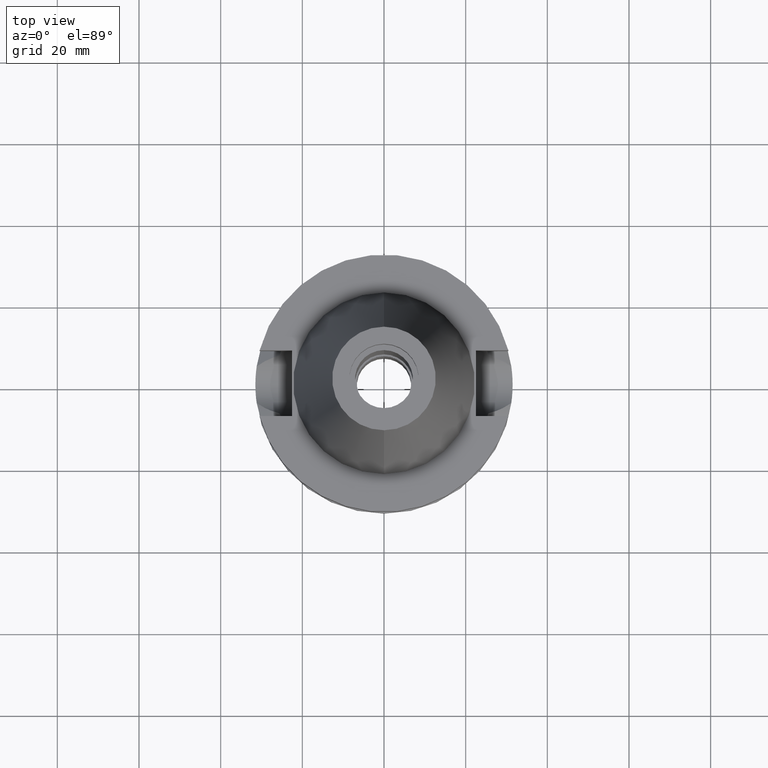
[diagram: clean part render]
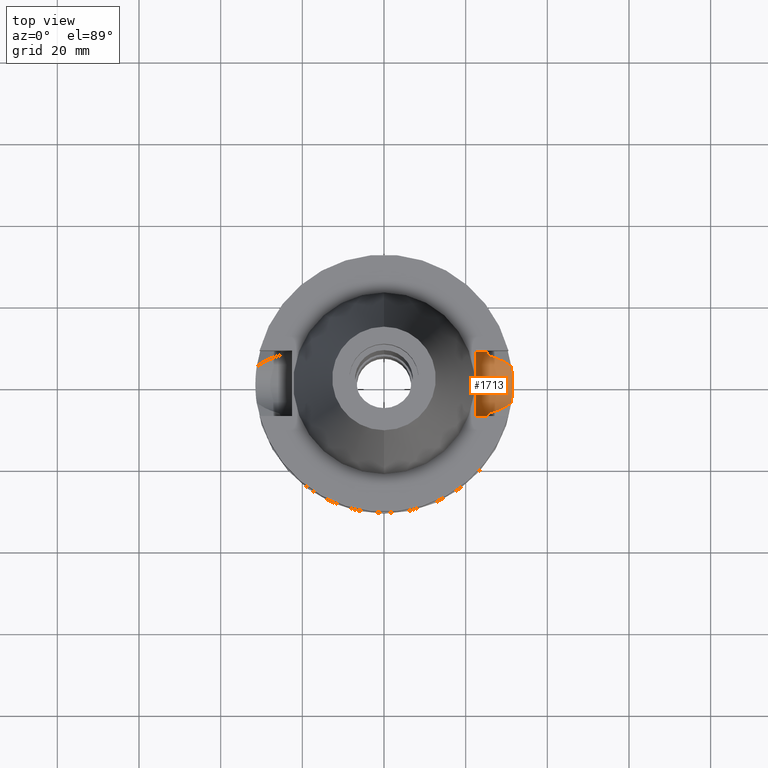
[diagram: same view with one face highlighted and labeled with its STEP entity id]
A machine part, top view. The second image highlights one B-rep face of the part: STEP entity #1713.
In plain terms, the highlighted cylindrical surface (edge-blend (fillet) strip) has radius 8.05 mm, axis along (1, 0, 0).
Its self-contained STEP definition (entity closure, byte-faithful):
#5 = CARTESIAN_POINT ( 'NONE',  ( 28.07142825273655262, 6.232117064706121035, -20.04851367446741506 ) ) ;
#24 = CARTESIAN_POINT ( 'NONE',  ( 25.53175183775000079, 7.097862220092999941, -18.74774300138999905 ) ) ;
#26 = EDGE_CURVE ( 'NONE', #1470, #2777, #822, .T. ) ;
#35 = CARTESIAN_POINT ( 'NONE',  ( 22.50000000000000000, 8.050000000000000711, -14.94999999999999929 ) ) ;
#50 = CARTESIAN_POINT ( 'NONE',  ( 25.53175183775000079, 7.097862220092999941, -18.74774300138999905 ) ) ;
#55 = CARTESIAN_POINT ( 'NONE',  ( 27.55504325123536802, 6.436563237531530035, -19.78459187968306665 ) ) ;
#76 = CARTESIAN_POINT ( 'NONE',  ( 25.29452398121201284, -7.902090651792915033, -16.48828405102948125 ) ) ;
#83 = AXIS2_PLACEMENT_3D ( 'NONE', #2367, #444, #3068 ) ;
#94 = CARTESIAN_POINT ( 'NONE',  ( 25.48480653792050532, 7.266729367421947750, -18.43213561436633086 ) ) ;
#96 = DIRECTION ( 'NONE',  ( 1.000000000000000000, -1.551559937893000172E-14, 0.0000000000000000000 ) ) ;
#115 = CARTESIAN_POINT ( 'NONE',  ( 25.31950905643225269, -7.821515286679913359, -16.85442525727320273 ) ) ;
#129 = DIRECTION ( 'NONE',  ( -1.000000000000000000, 0.0000000000000000000, 0.0000000000000000000 ) ) ;
#137 = CARTESIAN_POINT ( 'NONE',  ( 31.27811814699316173, -3.746647703606146518, -22.08610342036546115 ) ) ;
#141 = CARTESIAN_POINT ( 'NONE',  ( 25.24772266958000344, 8.050000000000000711, -14.94999999999999929 ) ) ;
#142 = B_SPLINE_CURVE_WITH_KNOTS ( 'NONE', 3,
 ( #383, #94, #2838, #2043, #592, #156, #664, #2769, #1561, #1137, #3074, #832, #1834, #141 ),
 .UNSPECIFIED., .F., .F.,
 ( 4, 2, 2, 1, 1, 2, 2, 4 ),
 ( 0.0000000000000000000, 0.2499999999999959477, 0.3749999999999952260, 0.4374999999999948930, 0.4687499999999947264, 0.4843749999999947820, 0.4999999999999947820, 1.000000000000000000 ),
 .UNSPECIFIED. ) ;
#156 = CARTESIAN_POINT ( 'NONE',  ( 25.35408314255057860, 7.708964442630808378, -17.26963666353005777 ) ) ;
#166 = CARTESIAN_POINT ( 'NONE',  ( 31.49999999999999289, -0.7652173854002088937, -23.00000000000000355 ) ) ;
#230 = CARTESIAN_POINT ( 'NONE',  ( 31.44586993974119693, 1.845388077327982934, -22.78626573708965353 ) ) ;
#243 = CARTESIAN_POINT ( 'NONE',  ( 27.52001206778910358, 6.449960729125881365, -19.76669255919230039 ) ) ;
#253 = CARTESIAN_POINT ( 'NONE',  ( 27.36157399842180382, -6.509459009752189829, -19.68606828696868760 ) ) ;
#291 = CARTESIAN_POINT ( 'NONE',  ( 30.47179919103066226, 5.022066387092488426, -21.27446330965968713 ) ) ;
#306 = CARTESIAN_POINT ( 'NONE',  ( 27.50576571943880566, 6.455390330637976071, -19.75941330061684553 ) ) ;
#347 = EDGE_CURVE ( 'NONE', #2267, #2570, #1900, .T. ) ;
#360 = CARTESIAN_POINT ( 'NONE',  ( 25.31648647172267630, -7.831300037042746354, -16.81378020971410336 ) ) ;
#375 = CARTESIAN_POINT ( 'NONE',  ( 25.24772266958000344, -8.050000000000000711, -14.94999999999999929 ) ) ;
#383 = CARTESIAN_POINT ( 'NONE',  ( 25.53175183775000079, 7.097862220092999941, -18.74774300138999905 ) ) ;
#395 = ORIENTED_EDGE ( 'NONE', *, *, #1835, .F. ) ;
#411 = LINE ( 'NONE', #1862, #651 ) ;
#414 = CARTESIAN_POINT ( 'NONE',  ( 31.49278265863215864, 0.7712237443674491155, -22.97267427306382714 ) ) ;
#444 = DIRECTION ( 'NONE',  ( 1.000000000000000000, 0.0000000000000000000, 0.0000000000000000000 ) ) ;
#468 = CARTESIAN_POINT ( 'NONE',  ( 26.79437906115841983, -6.719518736959172678, -19.39569514649581450 ) ) ;
#473 = CARTESIAN_POINT ( 'NONE',  ( 31.41518919074296079, 2.308430633290612377, -22.66192640672012004 ) ) ;
#474 = CARTESIAN_POINT ( 'NONE',  ( 25.53175183775000079, -7.097862220092999941, -18.74774300138999905 ) ) ;
#516 = CARTESIAN_POINT ( 'NONE',  ( 29.92547015430718105, -5.317011991061079357, -20.99582295828512457 ) ) ;
#535 = CARTESIAN_POINT ( 'NONE',  ( 30.50795924305214513, -4.966138605046432453, -21.29275614339417544 ) ) ;
#541 = CARTESIAN_POINT ( 'NONE',  ( 27.72881838708900659, 6.369038441966124786, -19.87339576659909923 ) ) ;
#556 = CARTESIAN_POINT ( 'NONE',  ( 31.17899877608999759, 4.485536235554000051, -21.63449434733000132 ) ) ;
#592 = CARTESIAN_POINT ( 'NONE',  ( 25.37569567372549528, 7.637836187999436532, -17.49781209657272640 ) ) ;
#636 = CARTESIAN_POINT ( 'NONE',  ( 25.25396284446427231, -8.030907492774099765, -15.59360398733923248 ) ) ;
#639 = CARTESIAN_POINT ( 'NONE',  ( 31.38993469299242989, -2.631299506615391248, -22.55875927457308450 ) ) ;
#651 = VECTOR ( 'NONE', #1165, 1000.000000000000000 ) ;
#660 = CARTESIAN_POINT ( 'NONE',  ( 31.47113664202177219, -1.554941824884414681, -22.89006639562905576 ) ) ;
#662 = CARTESIAN_POINT ( 'NONE',  ( 31.41417556869084748, 2.322180997274307490, -22.65779456375893730 ) ) ;
#664 = CARTESIAN_POINT ( 'NONE',  ( 25.34384339545049869, 7.742469616378786057, -17.15619314850168564 ) ) ;
#714 = CARTESIAN_POINT ( 'NONE',  ( 25.53175183775000079, -7.097862220092999941, -18.74774300138999905 ) ) ;
#727 = CARTESIAN_POINT ( 'NONE',  ( 27.46543449115334212, -6.470451347198184600, -19.73923068473311204 ) ) ;
#765 = CARTESIAN_POINT ( 'NONE',  ( 28.33578734562926016, 6.118942747044401997, -20.18369043501671811 ) ) ;
#774 = CARTESIAN_POINT ( 'NONE',  ( 30.86110005879823603, -4.726716024914688674, -21.47265403028684005 ) ) ;
#822 = B_SPLINE_CURVE_WITH_KNOTS ( 'NONE', 3,
 ( #1247, #774, #535, #516, #1454, #1979, #954, #1501, #2914, #3148, #1709, #2689, #727, #1740, #253, #468, #1232, #714 ),
 .UNSPECIFIED., .F., .F.,
 ( 4, 2, 2, 2, 2, 1, 1, 2, 2, 4 ),
 ( 0.0000000000000000000, 0.2500000000000039413, 0.3750000000000055511, 0.5000000000000072164, 0.6250000000000088818, 0.6875000000000096589, 0.7187500000000096589, 0.7343750000000096589, 0.7500000000000096589, 1.000000000000000000 ),
 .UNSPECIFIED. ) ;
#832 = CARTESIAN_POINT ( 'NONE',  ( 25.27267991477270925, 7.973333693868262628, -16.24500092433233078 ) ) ;
#877 = DIRECTION ( 'NONE',  ( 0.0000000000000000000, 0.0000000000000000000, -1.000000000000000000 ) ) ;
#904 = CARTESIAN_POINT ( 'NONE',  ( 31.17899877608999759, 4.485536235554000051, -21.63449434733000132 ) ) ;
#916 = CARTESIAN_POINT ( 'NONE',  ( 31.41024073627050228, -2.374795220354457115, -22.64174689569844290 ) ) ;
#954 = CARTESIAN_POINT ( 'NONE',  ( 29.08021064321458837, -5.770999253069938995, -20.56461318402386240 ) ) ;
#972 = CARTESIAN_POINT ( 'NONE',  ( 26.07032180093485962, 6.949818565984256402, -19.02443193453350645 ) ) ;
#1117 = CARTESIAN_POINT ( 'NONE',  ( 25.53175183775000079, -7.097862220092999941, -18.74774300138999905 ) ) ;
#1118 = CARTESIAN_POINT ( 'NONE',  ( 31.33672093448698703, -3.204248145709971851, -22.33748970090560704 ) ) ;
#1128 = EDGE_LOOP ( 'NONE', ( #2703, #3053, #395, #1635, #2280, #1234, #1791, #2960, #1891 ) ) ;
#1131 = CYLINDRICAL_SURFACE ( 'NONE', #83, 8.050000000000000711 ) ;
#1137 = CARTESIAN_POINT ( 'NONE',  ( 25.32546474064106690, 7.802209548897286240, -16.93201787082135823 ) ) ;
#1153 = CARTESIAN_POINT ( 'NONE',  ( 31.47113063452863813, 1.356702808491425216, -22.88730147016733341 ) ) ;
#1165 = DIRECTION ( 'NONE',  ( -1.000000000000000000, -1.551559937893000172E-14, 0.0000000000000000000 ) ) ;
#1191 = EDGE_CURVE ( 'NONE', #2222, #2915, #1734, .T. ) ;
#1232 = CARTESIAN_POINT ( 'NONE',  ( 26.19525032478314586, -6.915477855514470917, -19.08861364229106172 ) ) ;
#1234 = ORIENTED_EDGE ( 'NONE', *, *, #1520, .T. ) ;
#1245 = CARTESIAN_POINT ( 'NONE',  ( 25.24772266958000344, -8.050000000000000711, -14.94999999999999929 ) ) ;
#1247 = CARTESIAN_POINT ( 'NONE',  ( 31.17899877608999759, -4.485536235554000051, -21.63449434733000132 ) ) ;
#1334 = CARTESIAN_POINT ( 'NONE',  ( 25.24772266958000344, 8.050000000000000711, -14.94999999999999929 ) ) ;
#1355 = CARTESIAN_POINT ( 'NONE',  ( 25.32118155423751560, -7.816096717212906775, -16.87652453452377443 ) ) ;
#1373 = EDGE_CURVE ( 'NONE', #2915, #1920, #1659, .T. ) ;
#1406 = CARTESIAN_POINT ( 'NONE',  ( 22.50000000000000000, 8.050000000000000711, -14.94999999999999929 ) ) ;
#1417 = CARTESIAN_POINT ( 'NONE',  ( 31.42562755262359175, 2.162452754203622707, -22.70440397297250001 ) ) ;
#1454 = CARTESIAN_POINT ( 'NONE',  ( 29.72251472659647931, -5.432586942203953662, -20.89233083745377328 ) ) ;
#1460 = CARTESIAN_POINT ( 'NONE',  ( 26.57776260987021288, 6.789742760002750899, -19.28470942505863306 ) ) ;
#1470 = VERTEX_POINT ( 'NONE', #1743 ) ;
#1499 = LINE ( 'NONE', #35, #2685 ) ;
#1501 = CARTESIAN_POINT ( 'NONE',  ( 28.61865544333286593, -5.991295213228831074, -20.32891002976932526 ) ) ;
#1506 = CARTESIAN_POINT ( 'NONE',  ( 31.17899877608999759, 4.485536235554000051, -21.63449434733000132 ) ) ;
#1520 = EDGE_CURVE ( 'NONE', #1893, #2777, #2073, .T. ) ;
#1561 = CARTESIAN_POINT ( 'NONE',  ( 25.32840589093494188, 7.792665650289689161, -16.96921537928828982 ) ) ;
#1571 = CARTESIAN_POINT ( 'NONE',  ( 25.28048358772242210, -7.947040743794914874, -16.24400980664077920 ) ) ;
#1572 = CARTESIAN_POINT ( 'NONE',  ( 31.17899877608999759, -4.485536235554000051, -21.63449434733000132 ) ) ;
#1585 = CARTESIAN_POINT ( 'NONE',  ( 25.30212919435223995, -7.877667573970332349, -16.61042047323947202 ) ) ;
#1617 = CARTESIAN_POINT ( 'NONE',  ( 31.40782798546579002, -2.406597480406837963, -22.63190425694011765 ) ) ;
#1635 = ORIENTED_EDGE ( 'NONE', *, *, #347, .T. ) ;
#1659 = B_SPLINE_CURVE_WITH_KNOTS ( 'NONE', 3,
 ( #1506, #291, #2198, #765, #5, #541, #1970, #55, #1716, #243, #306, #2706, #1731, #1697, #1460, #972, #24 ),
 .UNSPECIFIED., .F., .F.,
 ( 4, 2, 2, 1, 2, 2, 1, 1, 2, 4 ),
 ( 0.0000000000000000000, 0.4999999999999766853, 0.6249999999999708011, 0.6562499999999695799, 0.6640624999999696909, 0.6679687499999694689, 0.6718749999999693578, 0.6874999999999700240, 0.7499999999999763522, 1.000000000000000000 ),
 .UNSPECIFIED. ) ;
#1676 = EDGE_CURVE ( 'NONE', #1893, #2570, #411, .T. ) ;
#1697 = CARTESIAN_POINT ( 'NONE',  ( 27.17315217822750384, 6.579069001358698543, -19.58937919979924303 ) ) ;
#1709 = CARTESIAN_POINT ( 'NONE',  ( 27.80169807866624154, -6.340445604692715342, -19.91129617893627923 ) ) ;
#1713 = ADVANCED_FACE ( 'NONE', ( #3089 ), #1131, .F. ) ;
#1716 = CARTESIAN_POINT ( 'NONE',  ( 27.52877746445875573, 6.446614613712037922, -19.77117115032586270 ) ) ;
#1731 = CARTESIAN_POINT ( 'NONE',  ( 27.31956760514108140, 6.525737468375463202, -19.66425797164356837 ) ) ;
#1734 = B_SPLINE_CURVE_WITH_KNOTS ( 'NONE', 3,
 ( #1892, #1880, #414, #1153, #1922, #230, #1906, #1417, #3094, #2166, #473, #662, #1866, #2129, #904 ),
 .UNSPECIFIED., .F., .F.,
 ( 4, 2, 2, 1, 1, 1, 2, 2, 4 ),
 ( 0.0000000000000000000, 0.2499999999999883982, 0.3749999999999825140, 0.4374999999999799050, 0.4687499999999787947, 0.4843749999999782396, 0.4921874999999782951, 0.4999999999999783507, 1.000000000000000000 ),
 .UNSPECIFIED. ) ;
#1740 = CARTESIAN_POINT ( 'NONE',  ( 27.39708669592975809, -6.496197659214550058, -19.70424711622213110 ) ) ;
#1743 = CARTESIAN_POINT ( 'NONE',  ( 31.17899877608999759, -4.485536235554000051, -21.63449434733000132 ) ) ;
#1791 = ORIENTED_EDGE ( 'NONE', *, *, #26, .F. ) ;
#1811 = CARTESIAN_POINT ( 'NONE',  ( 25.31202572170774800, -7.845729406580115750, -16.75279821057748464 ) ) ;
#1834 = CARTESIAN_POINT ( 'NONE',  ( 25.24772266958000344, 8.050000000000000711, -15.58981081119183543 ) ) ;
#1835 = EDGE_CURVE ( 'NONE', #2267, #2931, #1499, .T. ) ;
#1842 = CARTESIAN_POINT ( 'NONE',  ( 31.35450667024230853, -3.025521848174355988, -22.41217230646192249 ) ) ;
#1862 = CARTESIAN_POINT ( 'NONE',  ( 25.24772266958000344, -8.050000000000000711, -14.94999999999999929 ) ) ;
#1866 = CARTESIAN_POINT ( 'NONE',  ( 31.36323733687087412, 3.008256909448316474, -22.45007005688652058 ) ) ;
#1880 = CARTESIAN_POINT ( 'NONE',  ( 31.50000000000000000, 0.3826274448237855785, -23.00000000000000000 ) ) ;
#1891 = ORIENTED_EDGE ( 'NONE', *, *, #1191, .T. ) ;
#1892 = CARTESIAN_POINT ( 'NONE',  ( 31.50000000000000000, 0.0000000000000000000, -23.00000000000000000 ) ) ;
#1893 = VERTEX_POINT ( 'NONE', #1245 ) ;
#1900 = CIRCLE ( 'NONE', #2716, 8.050000000000000711 ) ;
#1906 = CARTESIAN_POINT ( 'NONE',  ( 31.43707380494915782, 1.991874285584799065, -22.75081719612129660 ) ) ;
#1920 = VERTEX_POINT ( 'NONE', #50 ) ;
#1922 = CARTESIAN_POINT ( 'NONE',  ( 31.46210895781884176, 1.552282156897066612, -22.85145502665788086 ) ) ;
#1970 = CARTESIAN_POINT ( 'NONE',  ( 27.64240585820639495, 6.402984554019469421, -19.82923237796020288 ) ) ;
#1979 = CARTESIAN_POINT ( 'NONE',  ( 29.29908582230972769, -5.659962057570722571, -20.67631781086769749 ) ) ;
#2043 = CARTESIAN_POINT ( 'NONE',  ( 25.39161474380845718, 7.584925632688007902, -17.65165132602323439 ) ) ;
#2073 = B_SPLINE_CURVE_WITH_KNOTS ( 'NONE', 3,
 ( #375, #2266, #636, #2534, #1571, #76, #1585, #1811, #360, #115, #1355, #2076, #2284, #1117 ),
 .UNSPECIFIED., .F., .F.,
 ( 4, 2, 2, 1, 1, 2, 2, 4 ),
 ( 0.0000000000000000000, 0.2500000000000145439, 0.3750000000000218159, 0.4375000000000255351, 0.4687500000000285882, 0.4843750000000303091, 0.5000000000000319744, 1.000000000000000000 ),
 .UNSPECIFIED. ) ;
#2076 = CARTESIAN_POINT ( 'NONE',  ( 25.36814761471070767, -7.663830712965410186, -17.48803584493431984 ) ) ;
#2129 = CARTESIAN_POINT ( 'NONE',  ( 31.28510629437223400, 3.747982014896686032, -22.12941976884499695 ) ) ;
#2166 = CARTESIAN_POINT ( 'NONE',  ( 31.41696533334520325, 2.284116035328624505, -22.66916283210402838 ) ) ;
#2198 = CARTESIAN_POINT ( 'NONE',  ( 29.60893881196622246, 5.537334914947801501, -20.83455916945238684 ) ) ;
#2222 = VERTEX_POINT ( 'NONE', #2641 ) ;
#2241 = B_SPLINE_CURVE_WITH_KNOTS ( 'NONE', 3,
 ( #1572, #2550, #137, #1118, #1842, #2812, #639, #2348, #1617, #916, #3090, #2831, #660, #166, #2604 ),
 .UNSPECIFIED., .F., .F.,
 ( 4, 2, 2, 1, 1, 1, 2, 2, 4 ),
 ( 0.0000000000000000000, 0.2500000000000027200, 0.3750000000000036082, 0.4375000000000038858, 0.4687500000000038303, 0.4843750000000039413, 0.4921875000000043854, 0.5000000000000048850, 1.000000000000000000 ),
 .UNSPECIFIED. ) ;
#2266 = CARTESIAN_POINT ( 'NONE',  ( 25.24772266958000344, -8.050000000000000711, -15.26991324108737302 ) ) ;
#2267 = VERTEX_POINT ( 'NONE', #1406 ) ;
#2280 = ORIENTED_EDGE ( 'NONE', *, *, #1676, .F. ) ;
#2284 = CARTESIAN_POINT ( 'NONE',  ( 25.43786330456363487, -7.435589081430040714, -18.11654211998952135 ) ) ;
#2305 = CARTESIAN_POINT ( 'NONE',  ( 22.50000000000000000, -8.050000000000000711, -14.94999999999999929 ) ) ;
#2348 = CARTESIAN_POINT ( 'NONE',  ( 31.40205479975380953, -2.481105014425309285, -22.60833711012757163 ) ) ;
#2367 = CARTESIAN_POINT ( 'NONE',  ( 22.50000000000000000, 0.0000000000000000000, -14.94999999999999929 ) ) ;
#2486 = EDGE_CURVE ( 'NONE', #1920, #2931, #142, .T. ) ;
#2534 = CARTESIAN_POINT ( 'NONE',  ( 25.27268336911707891, -7.971811480182248388, -16.08115959834941222 ) ) ;
#2550 = CARTESIAN_POINT ( 'NONE',  ( 31.23205551502680777, -4.116738412650061463, -21.88197095697250916 ) ) ;
#2570 = VERTEX_POINT ( 'NONE', #2305 ) ;
#2604 = CARTESIAN_POINT ( 'NONE',  ( 31.50000000000000000, 0.0000000000000000000, -23.00000000000000000 ) ) ;
#2641 = CARTESIAN_POINT ( 'NONE',  ( 31.50000000000000000, 0.0000000000000000000, -23.00000000000000000 ) ) ;
#2685 = VECTOR ( 'NONE', #96, 1000.000000000000000 ) ;
#2689 = CARTESIAN_POINT ( 'NONE',  ( 27.56742668355510162, -6.431705090889930254, -19.79143000378811834 ) ) ;
#2703 = ORIENTED_EDGE ( 'NONE', *, *, #1373, .T. ) ;
#2706 = CARTESIAN_POINT ( 'NONE',  ( 27.47011184910718029, 6.468955313817622788, -19.74119512099250429 ) ) ;
#2716 = AXIS2_PLACEMENT_3D ( 'NONE', #3049, #129, #877 ) ;
#2769 = CARTESIAN_POINT ( 'NONE',  ( 25.33288843118667444, 7.778112047386239958, -17.02510900864779231 ) ) ;
#2777 = VERTEX_POINT ( 'NONE', #474 ) ;
#2812 = CARTESIAN_POINT ( 'NONE',  ( 31.37856248376137813, -2.761955851364692904, -22.51193919384368414 ) ) ;
#2831 = CARTESIAN_POINT ( 'NONE',  ( 31.41250794612848551, -2.344643595681627168, -22.65099393206242340 ) ) ;
#2838 = CARTESIAN_POINT ( 'NONE',  ( 25.44390410195643781, 7.408324269917681448, -18.11690676765064367 ) ) ;
#2914 = CARTESIAN_POINT ( 'NONE',  ( 28.37646577869300657, -6.100301504317534373, -20.20516973346428102 ) ) ;
#2915 = VERTEX_POINT ( 'NONE', #556 ) ;
#2931 = VERTEX_POINT ( 'NONE', #1334 ) ;
#2960 = ORIENTED_EDGE ( 'NONE', *, *, #3080, .T. ) ;
#3049 = CARTESIAN_POINT ( 'NONE',  ( 22.50000000000000000, 0.0000000000000000000, -14.94999999999999929 ) ) ;
#3053 = ORIENTED_EDGE ( 'NONE', *, *, #2486, .T. ) ;
#3068 = DIRECTION ( 'NONE',  ( 0.0000000000000000000, 0.0000000000000000000, -1.000000000000000000 ) ) ;
#3074 = CARTESIAN_POINT ( 'NONE',  ( 25.32415423298266077, 7.806459850231335373, -16.91522840168177311 ) ) ;
#3080 = EDGE_CURVE ( 'NONE', #1470, #2222, #2241, .T. ) ;
#3089 = FACE_OUTER_BOUND ( 'NONE', #1128, .T. ) ;
#3090 = CARTESIAN_POINT ( 'NONE',  ( 31.41183557644179558, -2.353622844967007133, -22.64825188921189181 ) ) ;
#3094 = CARTESIAN_POINT ( 'NONE',  ( 31.41960840269376831, 2.247635077612286203, -22.67992632897206207 ) ) ;
#3148 = CARTESIAN_POINT ( 'NONE',  ( 27.99612884649479483, -6.260885910137527155, -20.01072621024005471 ) ) ;